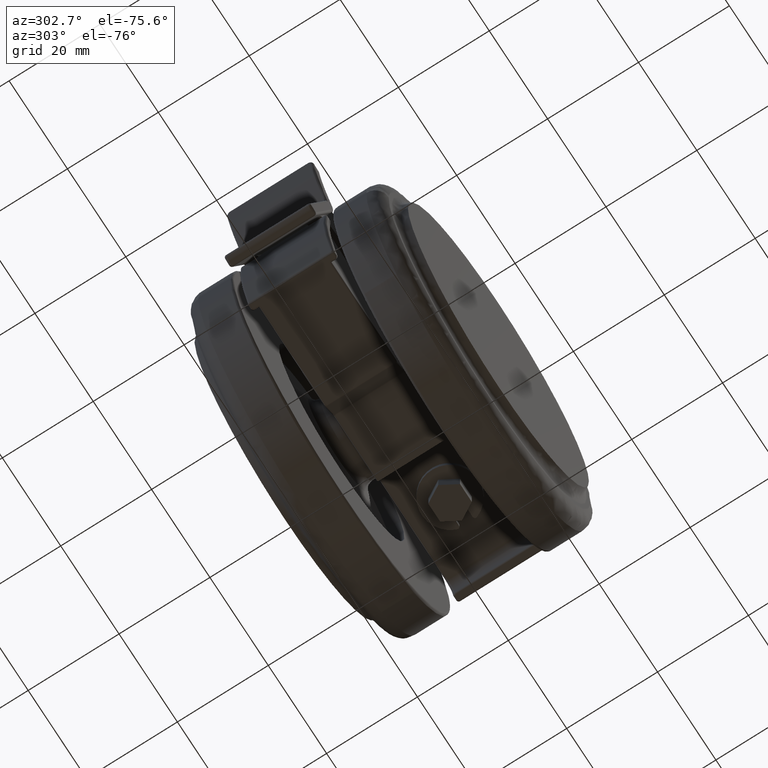
[diagram: clean part render]
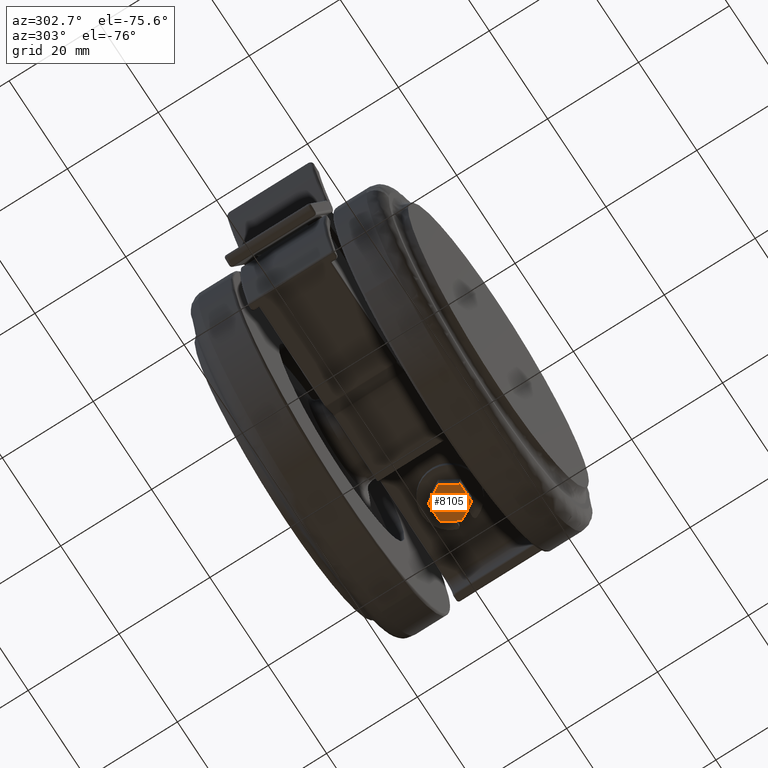
[diagram: same view with one face highlighted and labeled with its STEP entity id]
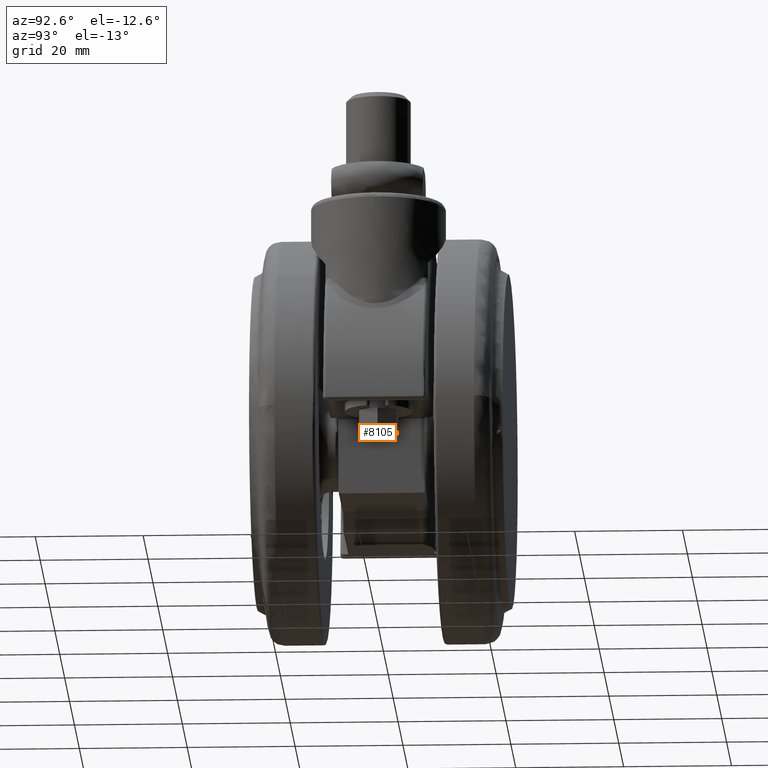
[diagram: same view with one face highlighted and labeled with its STEP entity id]
A machine part, auxiliary view. The second image highlights one B-rep face of the part: STEP entity #8105.
A second angle (auxiliary view) of the same face is appended — the face is thin or edge-on in the first view.
In plain terms, the highlighted face is a freeform B-spline surface patch.
Its self-contained STEP definition (entity closure, byte-faithful):
#8056=CARTESIAN_POINT('',(-4.445192911905394,3.849649986432642,-43.113390814203548));
#8057=CARTESIAN_POINT('',(4.445193128705767,3.849649986432642,-43.113390814203548));
#8058=CARTESIAN_POINT('',(-4.445192911905394,-3.849650174187273,-43.113390814203548));
#8059=CARTESIAN_POINT('',(4.445193128705767,-3.849650174187273,-43.113390814203548));
#8060=B_SPLINE_SURFACE_WITH_KNOTS('',1,1,((#8056,#8058),(#8057,#8059)),.UNSPECIFIED.,.F.,.F.,.U.,(2,2),(2,2),(0.0,8.890386040611160),(0.0,7.699300160619915),.UNSPECIFIED.);
#8061=CARTESIAN_POINT('',(-2.020725942163720,-3.500000000000000,-43.113390814203647));
#8062=VERTEX_POINT('',#8061);
#8063=CARTESIAN_POINT('',(2.020725942163720,-3.500000000000000,-43.113390814203647));
#8064=VERTEX_POINT('',#8063);
#8065=CARTESIAN_POINT('',(-2.020725942163720,-3.500000000000000,-43.113390814203647));
#8066=CARTESIAN_POINT('',(2.020725942163720,-3.500000000000000,-43.113390814203647));
#8067=QUASI_UNIFORM_CURVE('',1,(#8065,#8066),.UNSPECIFIED.,.F.,.U.);
#8068=EDGE_CURVE('',#8062,#8064,#8067,.T.);
#8069=ORIENTED_EDGE('',*,*,#8068,.F.);
#8070=CARTESIAN_POINT('',(-4.041451884327330,2.842171E-014,-43.113390814203647));
#8071=VERTEX_POINT('',#8070);
#8072=CARTESIAN_POINT('',(-4.041451884327330,2.842171E-014,-43.113390814203647));
#8073=CARTESIAN_POINT('',(-2.020725942163720,-3.500000000000000,-43.113390814203647));
#8074=QUASI_UNIFORM_CURVE('',1,(#8072,#8073),.UNSPECIFIED.,.F.,.U.);
#8075=EDGE_CURVE('',#8071,#8062,#8074,.T.);
#8076=ORIENTED_EDGE('',*,*,#8075,.F.);
#8077=CARTESIAN_POINT('',(-2.020725942163720,3.500000000000000,-43.113390814203647));
#8078=VERTEX_POINT('',#8077);
#8079=CARTESIAN_POINT('',(-2.020725942163720,3.500000000000000,-43.113390814203647));
#8080=CARTESIAN_POINT('',(-4.041451884327330,2.842171E-014,-43.113390814203647));
#8081=QUASI_UNIFORM_CURVE('',1,(#8079,#8080),.UNSPECIFIED.,.F.,.U.);
#8082=EDGE_CURVE('',#8078,#8071,#8081,.T.);
#8083=ORIENTED_EDGE('',*,*,#8082,.F.);
#8084=CARTESIAN_POINT('',(2.020725942163720,3.500000000000000,-43.113390814203647));
#8085=VERTEX_POINT('',#8084);
#8086=CARTESIAN_POINT('',(2.020725942163720,3.500000000000000,-43.113390814203647));
#8087=CARTESIAN_POINT('',(-2.020725942163720,3.500000000000000,-43.113390814203647));
#8088=QUASI_UNIFORM_CURVE('',1,(#8086,#8087),.UNSPECIFIED.,.F.,.U.);
#8089=EDGE_CURVE('',#8085,#8078,#8088,.T.);
#8090=ORIENTED_EDGE('',*,*,#8089,.F.);
#8091=CARTESIAN_POINT('',(4.041451884327330,0.0,-43.113390814203647));
#8092=VERTEX_POINT('',#8091);
#8093=CARTESIAN_POINT('',(4.041451884327330,0.0,-43.113390814203647));
#8094=CARTESIAN_POINT('',(2.020725942163720,3.500000000000000,-43.113390814203647));
#8095=QUASI_UNIFORM_CURVE('',1,(#8093,#8094),.UNSPECIFIED.,.F.,.U.);
#8096=EDGE_CURVE('',#8092,#8085,#8095,.T.);
#8097=ORIENTED_EDGE('',*,*,#8096,.F.);
#8098=CARTESIAN_POINT('',(2.020725942163720,-3.500000000000000,-43.113390814203647));
#8099=CARTESIAN_POINT('',(4.041451884327330,0.0,-43.113390814203647));
#8100=QUASI_UNIFORM_CURVE('',1,(#8098,#8099),.UNSPECIFIED.,.F.,.U.);
#8101=EDGE_CURVE('',#8064,#8092,#8100,.T.);
#8102=ORIENTED_EDGE('',*,*,#8101,.F.);
#8103=EDGE_LOOP('',(#8069,#8076,#8083,#8090,#8097,#8102));
#8104=FACE_OUTER_BOUND('',#8103,.T.);
#8105=ADVANCED_FACE('',(#8104),#8060,.T.);